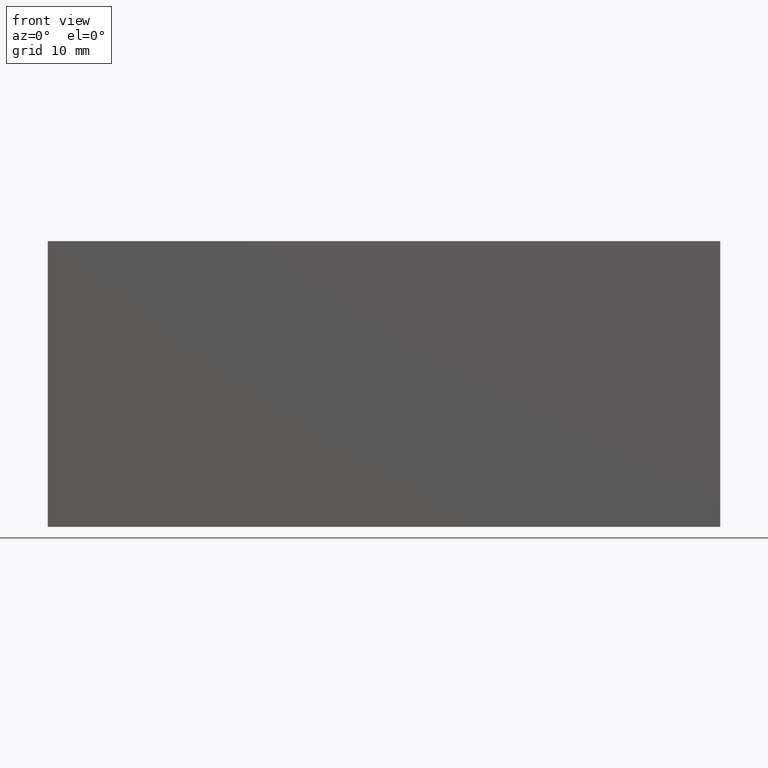
[diagram: clean part render]
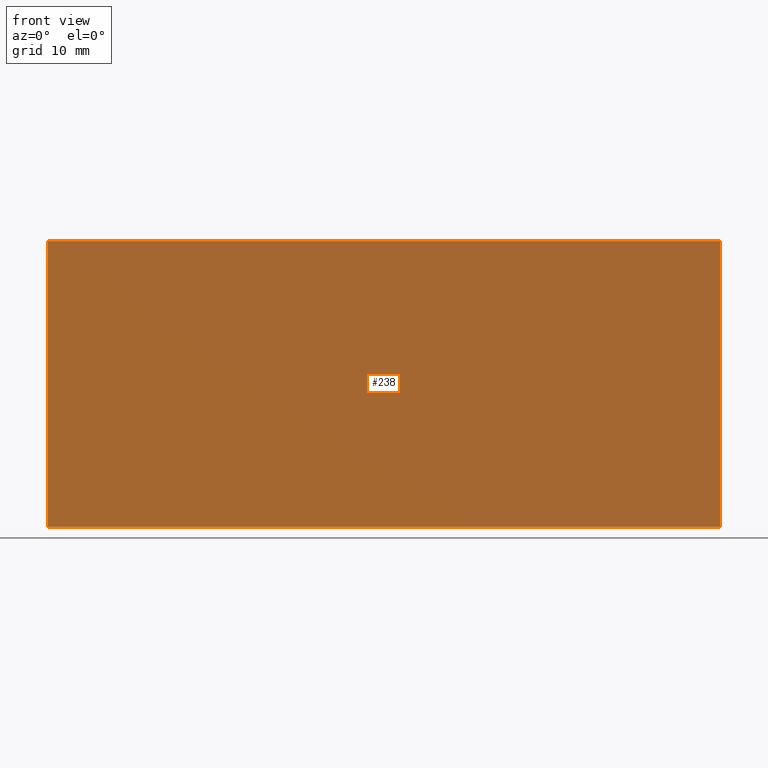
[diagram: same view with one face highlighted and labeled with its STEP entity id]
A machine part, front view. The second image highlights one B-rep face of the part: STEP entity #238.
In plain terms, the highlighted planar face has unit normal (-0, 1, 0).
Its self-contained STEP definition (entity closure, byte-faithful):
#3 = VECTOR ( 'NONE', #118, 1000.000000000000000 ) ;
#4 = LINE ( 'NONE', #115, #3 ) ;
#27 = VECTOR ( 'NONE', #122, 1000.000000000000000 ) ;
#28 = LINE ( 'NONE', #145, #27 ) ;
#29 = VECTOR ( 'NONE', #108, 1000.000000000000000 ) ;
#30 = LINE ( 'NONE', #106, #29 ) ;
#35 = LINE ( 'NONE', #144, #38 ) ;
#38 = VECTOR ( 'NONE', #141, 1000.000000000000000 ) ;
#72 = DIRECTION ( 'NONE',  ( 0.0000000000000000000, -0.0000000000000000000, 1.000000000000000000 ) ) ;
#73 = CARTESIAN_POINT ( 'NONE',  ( -30.00000000000000000, 0.0000000000000000000, -12.75000000000000000 ) ) ;
#79 = CARTESIAN_POINT ( 'NONE',  ( -30.00000000000000000, 0.0000000000000000000, 12.75000000000000000 ) ) ;
#80 = CARTESIAN_POINT ( 'NONE',  ( 30.00000000000000000, 0.0000000000000000000, 12.75000000000000000 ) ) ;
#81 = CARTESIAN_POINT ( 'NONE',  ( 30.00000000000000000, 0.0000000000000000000, -12.75000000000000000 ) ) ;
#82 = PLANE ( 'NONE',  #268 ) ;
#92 = VERTEX_POINT ( 'NONE', #73 ) ;
#93 = VERTEX_POINT ( 'NONE', #80 ) ;
#94 = CARTESIAN_POINT ( 'NONE',  ( 0.0000000000000000000, 0.0000000000000000000, 0.0000000000000000000 ) ) ;
#96 = VERTEX_POINT ( 'NONE', #81 ) ;
#97 = VERTEX_POINT ( 'NONE', #79 ) ;
#106 = CARTESIAN_POINT ( 'NONE',  ( -30.00000000000000000, 0.0000000000000000000, 12.75000000000000000 ) ) ;
#108 = DIRECTION ( 'NONE',  ( -1.000000000000000000, 0.0000000000000000000, -0.0000000000000000000 ) ) ;
#115 = CARTESIAN_POINT ( 'NONE',  ( 30.00000000000000000, 0.0000000000000000000, 12.75000000000000000 ) ) ;
#118 = DIRECTION ( 'NONE',  ( 0.0000000000000000000, 0.0000000000000000000, 1.000000000000000000 ) ) ;
#122 = DIRECTION ( 'NONE',  ( 0.0000000000000000000, 0.0000000000000000000, -1.000000000000000000 ) ) ;
#141 = DIRECTION ( 'NONE',  ( 1.000000000000000000, 0.0000000000000000000, -0.0000000000000000000 ) ) ;
#144 = CARTESIAN_POINT ( 'NONE',  ( 30.00000000000000000, 0.0000000000000000000, -12.75000000000000000 ) ) ;
#145 = CARTESIAN_POINT ( 'NONE',  ( -30.00000000000000000, 0.0000000000000000000, -12.75000000000000000 ) ) ;
#165 = DIRECTION ( 'NONE',  ( -0.0000000000000000000, 1.000000000000000000, 0.0000000000000000000 ) ) ;
#182 = ORIENTED_EDGE ( 'NONE', *, *, #256, .T. ) ;
#212 = FACE_OUTER_BOUND ( 'NONE', #232, .T. ) ;
#223 = ORIENTED_EDGE ( 'NONE', *, *, #267, .T. ) ;
#224 = ORIENTED_EDGE ( 'NONE', *, *, #247, .T. ) ;
#232 = EDGE_LOOP ( 'NONE', ( #224, #234, #223, #182 ) ) ;
#234 = ORIENTED_EDGE ( 'NONE', *, *, #266, .T. ) ;
#238 = ADVANCED_FACE ( 'NONE', ( #212 ), #82, .F. ) ;
#247 = EDGE_CURVE ( 'NONE', #96, #93, #4, .T. ) ;
#256 = EDGE_CURVE ( 'NONE', #92, #96, #35, .T. ) ;
#266 = EDGE_CURVE ( 'NONE', #93, #97, #30, .T. ) ;
#267 = EDGE_CURVE ( 'NONE', #97, #92, #28, .T. ) ;
#268 = AXIS2_PLACEMENT_3D ( 'NONE', #94, #165, #72 ) ;